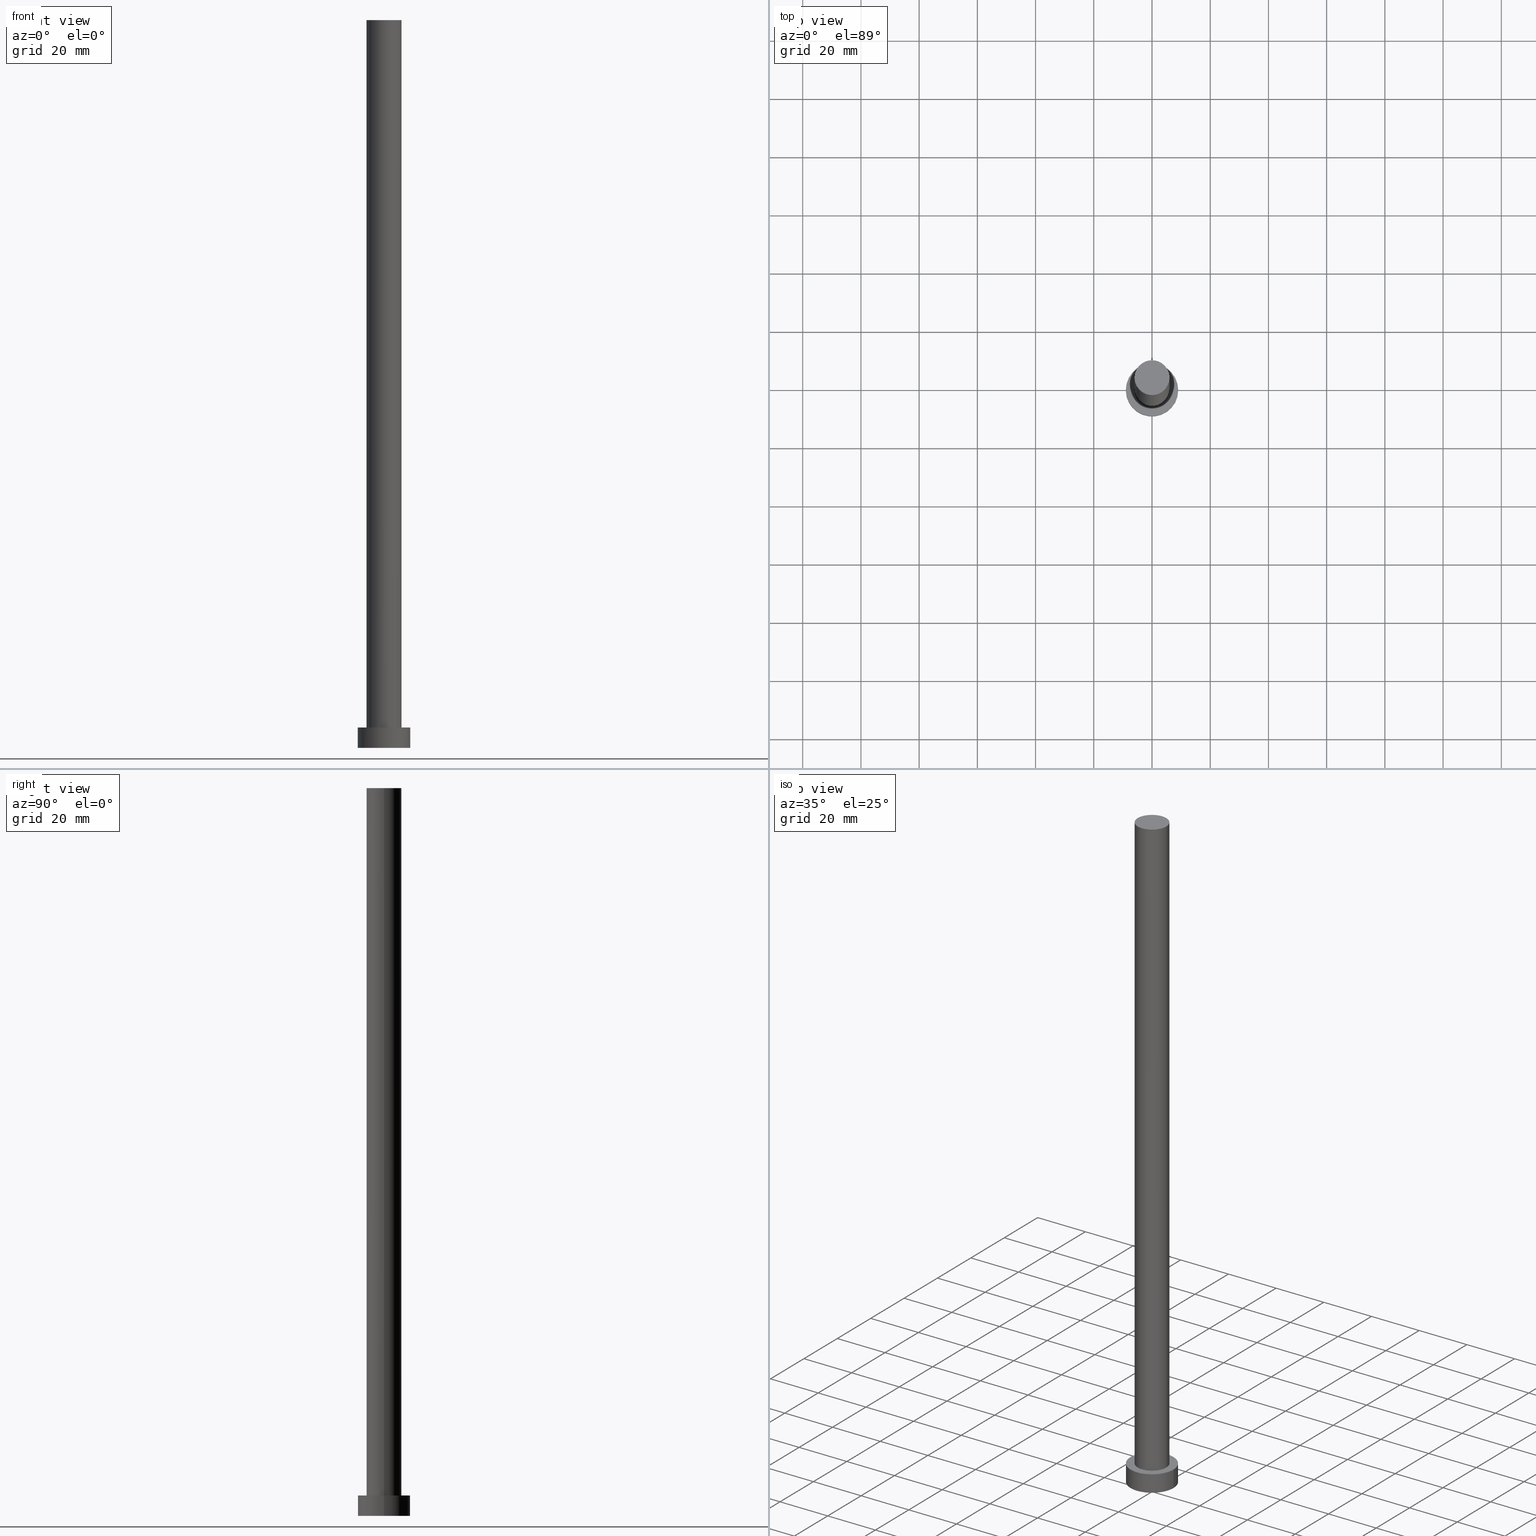
[diagram: canonical four-view strip — front | top / right | iso, engineering-drawing reading convention]
A machine part, canonical four-view strip (front | top / right | iso — engineering-drawing reading convention). The complete STEP part file that produces these views, byte-faithful:
ISO-10303-21;
HEADER;
FILE_DESCRIPTION (( 'STEP AP203' ),
    '1' );
FILE_NAME ('0396.STEP',
    '2023-02-13T12:25:06',
    ( '' ),
    ( '' ),
    'SwSTEP 2.0',
    'SolidWorks 2019',
    '' );
FILE_SCHEMA (( 'CONFIG_CONTROL_DESIGN' ));
ENDSEC;

DATA;
#1 = ORIENTED_EDGE ( 'NONE', *, *, #48, .F. ) ;
#2 = DIRECTION ( 'NONE',  ( 1.000000000000000000, 0.000000000000000000, 0.000000000000000000 ) ) ;
#3 = AXIS2_PLACEMENT_3D ( 'NONE', #250, #184, #103 ) ;
#4 = FACE_OUTER_BOUND ( 'NONE', #226, .T. ) ;
#5 = EDGE_CURVE ( 'NONE', #211, #43, #162, .T. ) ;
#6 = FACE_OUTER_BOUND ( 'NONE', #88, .T. ) ;
#7 = CC_DESIGN_PERSON_AND_ORGANIZATION_ASSIGNMENT ( #74, #255, ( #209 ) ) ;
#8 = DIRECTION ( 'NONE',  ( 1.000000000000000000, 0.000000000000000000, 0.000000000000000000 ) ) ;
#9 = DIRECTION ( 'NONE',  ( -0.000000000000000000, -0.000000000000000000, -1.000000000000000000 ) ) ;
#10 = AXIS2_PLACEMENT_3D ( 'NONE', #119, #194, #25 ) ;
#11 = APPROVAL ( #124, 'NEUR�EN�' ) ;
#12 = PERSON_AND_ORGANIZATION_ROLE ( 'creator' ) ;
#13 = DATE_AND_TIME ( #30, #216 ) ;
#14 = DIRECTION ( 'NONE',  ( -0.000000000000000000, -0.000000000000000000, -1.000000000000000000 ) ) ;
#15 = VERTEX_POINT ( 'NONE', #93 ) ;
#16 = CC_DESIGN_PERSON_AND_ORGANIZATION_ASSIGNMENT ( #156, #12, ( #101 ) ) ;
#17 = VERTEX_POINT ( 'NONE', #204 ) ;
#18 = CARTESIAN_POINT ( 'NONE',  ( 0.000000000000000000, 0.000000000000000000, 250.0000000000000000 ) ) ;
#19 = APPROVAL_STATUS ( 'not_yet_approved' ) ;
#20 = ADVANCED_BREP_SHAPE_REPRESENTATION ( '0396', ( #46, #44 ), #193 ) ;
#21 = DIRECTION ( 'NONE',  ( -0.000000000000000000, -0.000000000000000000, -1.000000000000000000 ) ) ;
#22 = DIRECTION ( 'NONE',  ( 0.000000000000000000, 0.000000000000000000, 1.000000000000000000 ) ) ;
#23 = AXIS2_PLACEMENT_3D ( 'NONE', #182, #14, #83 ) ;
#24 = APPROVAL_DATE_TIME ( #240, #11 ) ;
#25 = DIRECTION ( 'NONE',  ( 1.000000000000000000, 0.000000000000000000, -0.000000000000000000 ) ) ;
#26 = PLANE ( 'NONE',  #10 ) ;
#27 = CIRCLE ( 'NONE', #234, 9.000000000000000000 ) ;
#28 = EDGE_CURVE ( 'NONE', #185, #235, #206, .T. ) ;
#29 = APPROVAL_PERSON_ORGANIZATION ( #111, #155, #233 ) ;
#30 = CALENDAR_DATE ( 2023, 13, 2 ) ;
#31 = CARTESIAN_POINT ( 'NONE',  ( 9.000000000000000000, 1.102182119232617714E-15, 7.000000000000000000 ) ) ;
#32 = ORIENTED_EDGE ( 'NONE', *, *, #178, .T. ) ;
#33 = ADVANCED_FACE ( 'NONE', ( #4 ), #144, .F. ) ;
#34 = CARTESIAN_POINT ( 'NONE',  ( 0.000000000000000000, 0.000000000000000000, 7.000000000000000000 ) ) ;
#35 = APPROVAL_PERSON_ORGANIZATION ( #252, #11, #126 ) ;
#36 = ORIENTED_EDGE ( 'NONE', *, *, #195, .T. ) ;
#37 = AXIS2_PLACEMENT_3D ( 'NONE', #213, #59, #8 ) ;
#38 = CARTESIAN_POINT ( 'NONE',  ( 0.000000000000000000, 0.000000000000000000, 7.000000000000000000 ) ) ;
#39 = APPLICATION_PROTOCOL_DEFINITION ( 'international standard', 'config_control_design', 1994, #247 ) ;
#40 = ORIENTED_EDGE ( 'NONE', *, *, #5, .T. ) ;
#41 = SECURITY_CLASSIFICATION_LEVEL ( 'unclassified' ) ;
#42 = APPROVAL_PERSON_ORGANIZATION ( #158, #218, #65 ) ;
#43 = VERTEX_POINT ( 'NONE', #212 ) ;
#44 = AXIS2_PLACEMENT_3D ( 'NONE', #205, #236, #94 ) ;
#45 = FACE_OUTER_BOUND ( 'NONE', #112, .T. ) ;
#46 = MANIFOLD_SOLID_BREP ( 'P�idat vysunut�m3', #92 ) ;
#47 = VECTOR ( 'NONE', #228, 1000.000000000000000 ) ;
#48 = EDGE_CURVE ( 'NONE', #185, #168, #232, .T. ) ;
#49 = CARTESIAN_POINT ( 'NONE',  ( -6.000000000000000888, 0.000000000000000000, 7.000000000000000000 ) ) ;
#50 = DIRECTION ( 'NONE',  ( 1.000000000000000000, 0.000000000000000000, 0.000000000000000000 ) ) ;
#51 = EDGE_CURVE ( 'NONE', #43, #211, #27, .T. ) ;
#52 = VECTOR ( 'NONE', #227, 1000.000000000000000 ) ;
#53 = ORIENTED_EDGE ( 'NONE', *, *, #198, .F. ) ;
#54 = DIRECTION ( 'NONE',  ( 0.000000000000000000, 0.000000000000000000, 1.000000000000000000 ) ) ;
#55 = ADVANCED_FACE ( 'NONE', ( #6 ), #239, .T. ) ;
#56 = PERSON_AND_ORGANIZATION_ROLE ( 'design_supplier' ) ;
#57 = CARTESIAN_POINT ( 'NONE',  ( 0.000000000000000000, 0.000000000000000000, 250.0000000000000000 ) ) ;
#58 = EDGE_CURVE ( 'NONE', #235, #185, #253, .T. ) ;
#59 = DIRECTION ( 'NONE',  ( 0.000000000000000000, 0.000000000000000000, 1.000000000000000000 ) ) ;
#60 = COORDINATED_UNIVERSAL_TIME_OFFSET ( 1, 0, .AHEAD. ) ;
#61 = DIRECTION ( 'NONE',  ( 0.000000000000000000, 0.000000000000000000, 1.000000000000000000 ) ) ;
#62 = ADVANCED_FACE ( 'NONE', ( #98, #242 ), #154, .T. ) ;
#63 = DIRECTION ( 'NONE',  ( -1.000000000000000000, 0.000000000000000000, 0.000000000000000000 ) ) ;
#64 = DIRECTION ( 'NONE',  ( 0.000000000000000000, 0.000000000000000000, 1.000000000000000000 ) ) ;
#65 = APPROVAL_ROLE ( '' ) ;
#66 = AXIS2_PLACEMENT_3D ( 'NONE', #34, #225, #63 ) ;
#67 = EDGE_CURVE ( 'NONE', #168, #128, #118, .T. ) ;
#68 = EDGE_LOOP ( 'NONE', ( #229, #145, #199, #191 ) ) ;
#69 = FACE_OUTER_BOUND ( 'NONE', #68, .T. ) ;
#70 = ORIENTED_EDGE ( 'NONE', *, *, #147, .T. ) ;
#71 = DIRECTION ( 'NONE',  ( 1.000000000000000000, 0.000000000000000000, -0.000000000000000000 ) ) ;
#72 = CC_DESIGN_APPROVAL ( #218, ( #180 ) ) ;
#73 = CARTESIAN_POINT ( 'NONE',  ( 0.000000000000000000, 0.000000000000000000, 7.000000000000000000 ) ) ;
#74 = PERSON_AND_ORGANIZATION ( #174, #132 ) ;
#75 = EDGE_CURVE ( 'NONE', #15, #17, #248, .T. ) ;
#76 = VECTOR ( 'NONE', #21, 1000.000000000000000 ) ;
#77 = CC_DESIGN_SECURITY_CLASSIFICATION ( #134, ( #180 ) ) ;
#78 = CARTESIAN_POINT ( 'NONE',  ( 0.000000000000000000, 0.000000000000000000, 0.000000000000000000 ) ) ;
#79 = CALENDAR_DATE ( 2023, 13, 2 ) ;
#80 = CYLINDRICAL_SURFACE ( 'NONE', #23, 6.000000000000000888 ) ;
#81 = DATE_TIME_ROLE ( 'creation_date' ) ;
#82 = FACE_OUTER_BOUND ( 'NONE', #86, .T. ) ;
#83 = DIRECTION ( 'NONE',  ( -1.000000000000000000, 0.000000000000000000, 0.000000000000000000 ) ) ;
#84 = ORIENTED_EDGE ( 'NONE', *, *, #28, .T. ) ;
#85 = COORDINATED_UNIVERSAL_TIME_OFFSET ( 1, 0, .AHEAD. ) ;
#86 = EDGE_LOOP ( 'NONE', ( #190, #143, #106, #91 ) ) ;
#87 = AXIS2_PLACEMENT_3D ( 'NONE', #38, #110, #188 ) ;
#88 = EDGE_LOOP ( 'NONE', ( #53, #165, #237, #70 ) ) ;
#89 = DIRECTION ( 'NONE',  ( 0.000000000000000000, 0.000000000000000000, 1.000000000000000000 ) ) ;
#90 = COORDINATED_UNIVERSAL_TIME_OFFSET ( 1, 0, .AHEAD. ) ;
#91 = ORIENTED_EDGE ( 'NONE', *, *, #130, .F. ) ;
#92 = CLOSED_SHELL ( 'NONE', ( #120, #246, #55, #62, #33, #117, #107 ) ) ;
#93 = CARTESIAN_POINT ( 'NONE',  ( 9.000000000000000000, 1.102182119232617714E-15, 0.000000000000000000 ) ) ;
#94 = DIRECTION ( 'NONE',  ( 1.000000000000000000, 0.000000000000000000, 0.000000000000000000 ) ) ;
#95 = CC_DESIGN_DATE_AND_TIME_ASSIGNMENT ( #122, #81, ( #101 ) ) ;
#96 = AXIS2_PLACEMENT_3D ( 'NONE', #57, #113, #2 ) ;
#97 = COORDINATED_UNIVERSAL_TIME_OFFSET ( 1, 0, .AHEAD. ) ;
#98 = FACE_BOUND ( 'NONE', #164, .T. ) ;
#99 = AXIS2_PLACEMENT_3D ( 'NONE', #172, #22, #71 ) ;
#100 = CARTESIAN_POINT ( 'NONE',  ( 6.000000000000000888, 7.347880794884120722E-16, 7.000000000000000000 ) ) ;
#101 = PRODUCT_DEFINITION ( 'NEZN�M�', '', #180, #222 ) ;
#102 = CARTESIAN_POINT ( 'NONE',  ( -9.000000000000000000, 0.000000000000000000, 7.000000000000000000 ) ) ;
#103 = DIRECTION ( 'NONE',  ( -1.000000000000000000, 0.000000000000000000, 0.000000000000000000 ) ) ;
#104 = CALENDAR_DATE ( 2023, 13, 2 ) ;
#105 = CYLINDRICAL_SURFACE ( 'NONE', #3, 6.000000000000000888 ) ;
#106 = ORIENTED_EDGE ( 'NONE', *, *, #75, .T. ) ;
#107 = ADVANCED_FACE ( 'NONE', ( #45 ), #26, .T. ) ;
#108 = LINE ( 'NONE', #163, #47 ) ;
#109 = EDGE_LOOP ( 'NONE', ( #40, #208 ) ) ;
#110 = DIRECTION ( 'NONE',  ( -0.000000000000000000, -0.000000000000000000, -1.000000000000000000 ) ) ;
#111 = PERSON_AND_ORGANIZATION ( #174, #132 ) ;
#112 = EDGE_LOOP ( 'NONE', ( #84, #161 ) ) ;
#113 = DIRECTION ( 'NONE',  ( 0.000000000000000000, 0.000000000000000000, 1.000000000000000000 ) ) ;
#114 = LOCAL_TIME ( 13, 25, 6.000000000000000000, #85 ) ;
#115 = CC_DESIGN_PERSON_AND_ORGANIZATION_ASSIGNMENT ( #159, #224, ( #180 ) ) ;
#116 = AXIS2_PLACEMENT_3D ( 'NONE', #140, #179, #50 ) ;
#117 = ADVANCED_FACE ( 'NONE', ( #69 ), #105, .T. ) ;
#118 = CIRCLE ( 'NONE', #37, 6.000000000000000888 ) ;
#119 = CARTESIAN_POINT ( 'NONE',  ( 0.000000000000000000, 0.000000000000000000, 250.0000000000000000 ) ) ;
#120 = ADVANCED_FACE ( 'NONE', ( #201 ), #80, .T. ) ;
#121 = CALENDAR_DATE ( 2023, 13, 2 ) ;
#122 = DATE_AND_TIME ( #79, #114 ) ;
#123 = ORIENTED_EDGE ( 'NONE', *, *, #75, .F. ) ;
#124 = APPROVAL_STATUS ( 'not_yet_approved' ) ;
#125 = LINE ( 'NONE', #31, #176 ) ;
#126 = APPROVAL_ROLE ( '' ) ;
#127 =( NAMED_UNIT ( * ) SI_UNIT ( $, .STERADIAN. ) SOLID_ANGLE_UNIT ( ) );
#128 = VERTEX_POINT ( 'NONE', #100 ) ;
#129 = AXIS2_PLACEMENT_3D ( 'NONE', #78, #61, #133 ) ;
#130 = EDGE_CURVE ( 'NONE', #211, #17, #108, .T. ) ;
#131 = DIRECTION ( 'NONE',  ( 0.000000000000000000, 0.000000000000000000, 1.000000000000000000 ) ) ;
#132 = ORGANIZATION ( 'NEUR�EN�', 'NEUR�EN�', '' ) ;
#133 = DIRECTION ( 'NONE',  ( 1.000000000000000000, 0.000000000000000000, 0.000000000000000000 ) ) ;
#134 = SECURITY_CLASSIFICATION ( '', '', #41 ) ;
#135 = CARTESIAN_POINT ( 'NONE',  ( 6.000000000000000888, 7.347880794884120722E-16, 250.0000000000000000 ) ) ;
#136 = APPROVAL_DATE_TIME ( #13, #218 ) ;
#137 = CYLINDRICAL_SURFACE ( 'NONE', #66, 9.000000000000000000 ) ;
#138 = ORIENTED_EDGE ( 'NONE', *, *, #195, .F. ) ;
#139 = PERSON_AND_ORGANIZATION ( #174, #132 ) ;
#140 = CARTESIAN_POINT ( 'NONE',  ( 0.000000000000000000, 0.000000000000000000, 7.000000000000000000 ) ) ;
#141 = DATE_AND_TIME ( #104, #169 ) ;
#142 = PERSON_AND_ORGANIZATION_ROLE ( 'classification_officer' ) ;
#143 = ORIENTED_EDGE ( 'NONE', *, *, #198, .T. ) ;
#144 = PLANE ( 'NONE',  #99 ) ;
#145 = ORIENTED_EDGE ( 'NONE', *, *, #28, .F. ) ;
#146 = DIRECTION ( 'NONE',  ( 1.000000000000000000, 0.000000000000000000, 0.000000000000000000 ) ) ;
#147 = EDGE_CURVE ( 'NONE', #17, #15, #153, .T. ) ;
#148 = CARTESIAN_POINT ( 'NONE',  ( -6.000000000000000888, 0.000000000000000000, 250.0000000000000000 ) ) ;
#149 = LOCAL_TIME ( 13, 25, 6.000000000000000000, #97 ) ;
#150 = AXIS2_PLACEMENT_3D ( 'NONE', #73, #171, #146 ) ;
#151 = PRODUCT_RELATED_PRODUCT_CATEGORY ( 'detail', '', ( #209 ) ) ;
#152 = CARTESIAN_POINT ( 'NONE',  ( 0.000000000000000000, 0.000000000000000000, 7.000000000000000000 ) ) ;
#153 = CIRCLE ( 'NONE', #221, 9.000000000000000000 ) ;
#154 = PLANE ( 'NONE',  #217 ) ;
#155 = APPROVAL ( #19, 'NEUR�EN�' ) ;
#156 = PERSON_AND_ORGANIZATION ( #174, #132 ) ;
#157 = DATE_AND_TIME ( #121, #251 ) ;
#158 = PERSON_AND_ORGANIZATION ( #174, #132 ) ;
#159 = PERSON_AND_ORGANIZATION ( #174, #132 ) ;
#160 = CARTESIAN_POINT ( 'NONE',  ( 0.000000000000000000, 0.000000000000000000, 0.000000000000000000 ) ) ;
#161 = ORIENTED_EDGE ( 'NONE', *, *, #58, .T. ) ;
#162 = CIRCLE ( 'NONE', #150, 9.000000000000000000 ) ;
#163 = CARTESIAN_POINT ( 'NONE',  ( -9.000000000000000000, 0.000000000000000000, 7.000000000000000000 ) ) ;
#164 = EDGE_LOOP ( 'NONE', ( #202, #138 ) ) ;
#165 = ORIENTED_EDGE ( 'NONE', *, *, #5, .F. ) ;
#166 = PRODUCT_DEFINITION_SHAPE ( 'NONE', 'NONE',  #101 ) ;
#167 = MECHANICAL_CONTEXT ( 'NONE', #231, 'mechanical' ) ;
#168 = VERTEX_POINT ( 'NONE', #49 ) ;
#169 = LOCAL_TIME ( 13, 25, 6.000000000000000000, #60 ) ;
#170 =( LENGTH_UNIT ( ) NAMED_UNIT ( * ) SI_UNIT ( .MILLI., .METRE. ) );
#171 = DIRECTION ( 'NONE',  ( 0.000000000000000000, 0.000000000000000000, 1.000000000000000000 ) ) ;
#172 = CARTESIAN_POINT ( 'NONE',  ( 0.000000000000000000, 0.000000000000000000, 0.000000000000000000 ) ) ;
#173 = CC_DESIGN_PERSON_AND_ORGANIZATION_ASSIGNMENT ( #187, #56, ( #180 ) ) ;
#174 = PERSON ( 'NEUR�EN�', 'NEUR�EN�', 'NEUR�EN�', ('NEUR�EN�'), ('NEUR�EN�'), ('NEUR�EN�') ) ;
#175 = SHAPE_DEFINITION_REPRESENTATION ( #166, #20 ) ;
#176 = VECTOR ( 'NONE', #9, 1000.000000000000000 ) ;
#177 = CC_DESIGN_APPROVAL ( #11, ( #134 ) ) ;
#178 = EDGE_CURVE ( 'NONE', #235, #128, #181, .T. ) ;
#179 = DIRECTION ( 'NONE',  ( 0.000000000000000000, 0.000000000000000000, 1.000000000000000000 ) ) ;
#180 = PRODUCT_DEFINITION_FORMATION_WITH_SPECIFIED_SOURCE ( 'LIBOVOLN�', '', #209, .NOT_KNOWN. ) ;
#181 = LINE ( 'NONE', #135, #52 ) ;
#182 = CARTESIAN_POINT ( 'NONE',  ( 0.000000000000000000, 0.000000000000000000, 250.0000000000000000 ) ) ;
#183 = DATE_TIME_ROLE ( 'classification_date' ) ;
#184 = DIRECTION ( 'NONE',  ( -0.000000000000000000, -0.000000000000000000, -1.000000000000000000 ) ) ;
#185 = VERTEX_POINT ( 'NONE', #220 ) ;
#186 = ORIENTED_EDGE ( 'NONE', *, *, #147, .F. ) ;
#187 = PERSON_AND_ORGANIZATION ( #174, #132 ) ;
#188 = DIRECTION ( 'NONE',  ( -1.000000000000000000, 0.000000000000000000, 0.000000000000000000 ) ) ;
#189 = DIRECTION ( 'NONE',  ( 1.000000000000000000, 0.000000000000000000, 0.000000000000000000 ) ) ;
#190 = ORIENTED_EDGE ( 'NONE', *, *, #51, .F. ) ;
#191 = ORIENTED_EDGE ( 'NONE', *, *, #67, .T. ) ;
#192 = CARTESIAN_POINT ( 'NONE',  ( 0.000000000000000000, 0.000000000000000000, 7.000000000000000000 ) ) ;
#193 =( GEOMETRIC_REPRESENTATION_CONTEXT ( 3 ) GLOBAL_UNCERTAINTY_ASSIGNED_CONTEXT ( ( #245 ) ) GLOBAL_UNIT_ASSIGNED_CONTEXT ( ( #170, #207, #127 ) ) REPRESENTATION_CONTEXT ( 'NONE', 'WORKASPACE' ) );
#194 = DIRECTION ( 'NONE',  ( 0.000000000000000000, 0.000000000000000000, 1.000000000000000000 ) ) ;
#195 = EDGE_CURVE ( 'NONE', #128, #168, #203, .T. ) ;
#196 = CC_DESIGN_PERSON_AND_ORGANIZATION_ASSIGNMENT ( #139, #142, ( #134 ) ) ;
#197 = APPROVAL_DATE_TIME ( #157, #155 ) ;
#198 = EDGE_CURVE ( 'NONE', #43, #15, #125, .T. ) ;
#199 = ORIENTED_EDGE ( 'NONE', *, *, #48, .T. ) ;
#200 = CARTESIAN_POINT ( 'NONE',  ( 6.000000000000000888, 7.347880794884120722E-16, 250.0000000000000000 ) ) ;
#201 = FACE_OUTER_BOUND ( 'NONE', #230, .T. ) ;
#202 = ORIENTED_EDGE ( 'NONE', *, *, #67, .F. ) ;
#203 = CIRCLE ( 'NONE', #116, 6.000000000000000888 ) ;
#204 = CARTESIAN_POINT ( 'NONE',  ( -9.000000000000000000, 0.000000000000000000, 0.000000000000000000 ) ) ;
#205 = CARTESIAN_POINT ( 'NONE',  ( 0.000000000000000000, 0.000000000000000000, 0.000000000000000000 ) ) ;
#206 = CIRCLE ( 'NONE', #96, 6.000000000000000888 ) ;
#207 =( NAMED_UNIT ( * ) PLANE_ANGLE_UNIT ( ) SI_UNIT ( $, .RADIAN. ) );
#208 = ORIENTED_EDGE ( 'NONE', *, *, #51, .T. ) ;
#209 = PRODUCT ( '0396', '0396', '', ( #167 ) ) ;
#210 = APPLICATION_PROTOCOL_DEFINITION ( 'international standard', 'config_control_design', 1994, #231 ) ;
#211 = VERTEX_POINT ( 'NONE', #102 ) ;
#212 = CARTESIAN_POINT ( 'NONE',  ( 9.000000000000000000, 1.102182119232617714E-15, 7.000000000000000000 ) ) ;
#213 = CARTESIAN_POINT ( 'NONE',  ( 0.000000000000000000, 0.000000000000000000, 7.000000000000000000 ) ) ;
#214 = DIRECTION ( 'NONE',  ( 1.000000000000000000, 0.000000000000000000, 0.000000000000000000 ) ) ;
#215 = COORDINATED_UNIVERSAL_TIME_OFFSET ( 1, 0, .AHEAD. ) ;
#216 = LOCAL_TIME ( 13, 25, 6.000000000000000000, #215 ) ;
#217 = AXIS2_PLACEMENT_3D ( 'NONE', #152, #131, #243 ) ;
#218 = APPROVAL ( #249, 'NEUR�EN�' ) ;
#219 = DIRECTION ( 'NONE',  ( 1.000000000000000000, 0.000000000000000000, 0.000000000000000000 ) ) ;
#220 = CARTESIAN_POINT ( 'NONE',  ( -6.000000000000000888, 0.000000000000000000, 250.0000000000000000 ) ) ;
#221 = AXIS2_PLACEMENT_3D ( 'NONE', #160, #64, #219 ) ;
#222 = DESIGN_CONTEXT ( 'detailed design', #247, 'design' ) ;
#223 = CC_DESIGN_DATE_AND_TIME_ASSIGNMENT ( #141, #183, ( #134 ) ) ;
#224 = PERSON_AND_ORGANIZATION_ROLE ( 'creator' ) ;
#225 = DIRECTION ( 'NONE',  ( -0.000000000000000000, -0.000000000000000000, -1.000000000000000000 ) ) ;
#226 = EDGE_LOOP ( 'NONE', ( #186, #123 ) ) ;
#227 = DIRECTION ( 'NONE',  ( -0.000000000000000000, -0.000000000000000000, -1.000000000000000000 ) ) ;
#228 = DIRECTION ( 'NONE',  ( -0.000000000000000000, -0.000000000000000000, -1.000000000000000000 ) ) ;
#229 = ORIENTED_EDGE ( 'NONE', *, *, #178, .F. ) ;
#230 = EDGE_LOOP ( 'NONE', ( #254, #32, #36, #1 ) ) ;
#231 = APPLICATION_CONTEXT ( 'configuration controlled 3d designs of mechanical parts and assemblies' ) ;
#232 = LINE ( 'NONE', #148, #76 ) ;
#233 = APPROVAL_ROLE ( '' ) ;
#234 = AXIS2_PLACEMENT_3D ( 'NONE', #192, #54, #189 ) ;
#235 = VERTEX_POINT ( 'NONE', #200 ) ;
#236 = DIRECTION ( 'NONE',  ( 0.000000000000000000, 0.000000000000000000, 1.000000000000000000 ) ) ;
#237 = ORIENTED_EDGE ( 'NONE', *, *, #130, .T. ) ;
#238 = AXIS2_PLACEMENT_3D ( 'NONE', #18, #89, #214 ) ;
#239 = CYLINDRICAL_SURFACE ( 'NONE', #87, 9.000000000000000000 ) ;
#240 = DATE_AND_TIME ( #244, #149 ) ;
#241 = CC_DESIGN_APPROVAL ( #155, ( #101 ) ) ;
#242 = FACE_OUTER_BOUND ( 'NONE', #109, .T. ) ;
#243 = DIRECTION ( 'NONE',  ( 1.000000000000000000, 0.000000000000000000, -0.000000000000000000 ) ) ;
#244 = CALENDAR_DATE ( 2023, 13, 2 ) ;
#245 = UNCERTAINTY_MEASURE_WITH_UNIT (LENGTH_MEASURE( 1.000000000000000082E-05 ), #170, 'distance_accuracy_value', 'NONE');
#246 = ADVANCED_FACE ( 'NONE', ( #82 ), #137, .T. ) ;
#247 = APPLICATION_CONTEXT ( 'configuration controlled 3d designs of mechanical parts and assemblies' ) ;
#248 = CIRCLE ( 'NONE', #129, 9.000000000000000000 ) ;
#249 = APPROVAL_STATUS ( 'not_yet_approved' ) ;
#250 = CARTESIAN_POINT ( 'NONE',  ( 0.000000000000000000, 0.000000000000000000, 250.0000000000000000 ) ) ;
#251 = LOCAL_TIME ( 13, 25, 6.000000000000000000, #90 ) ;
#252 = PERSON_AND_ORGANIZATION ( #174, #132 ) ;
#253 = CIRCLE ( 'NONE', #238, 6.000000000000000888 ) ;
#254 = ORIENTED_EDGE ( 'NONE', *, *, #58, .F. ) ;
#255 = PERSON_AND_ORGANIZATION_ROLE ( 'design_owner' ) ;
ENDSEC;
END-ISO-10303-21;
